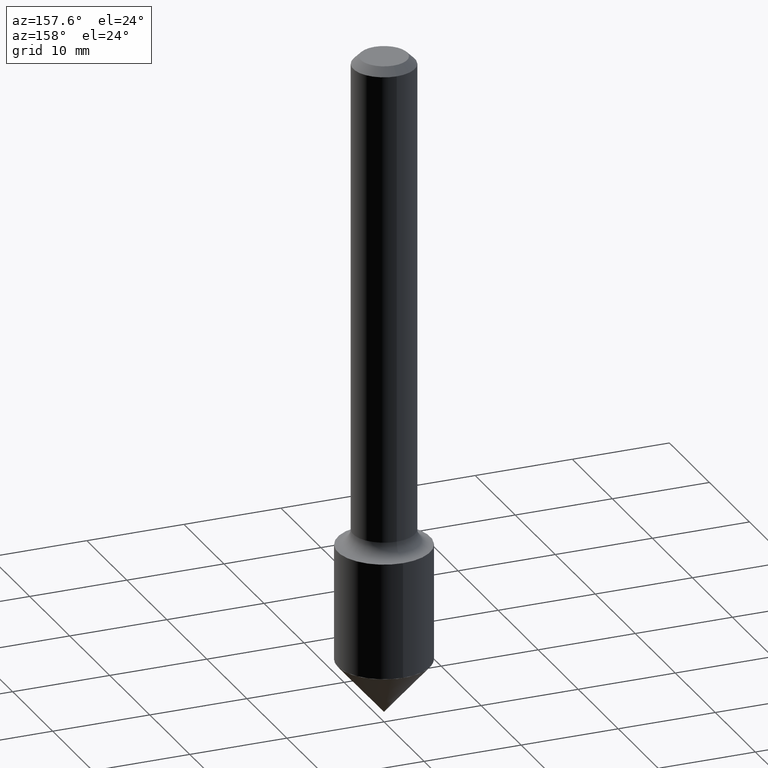
[diagram: clean part render]
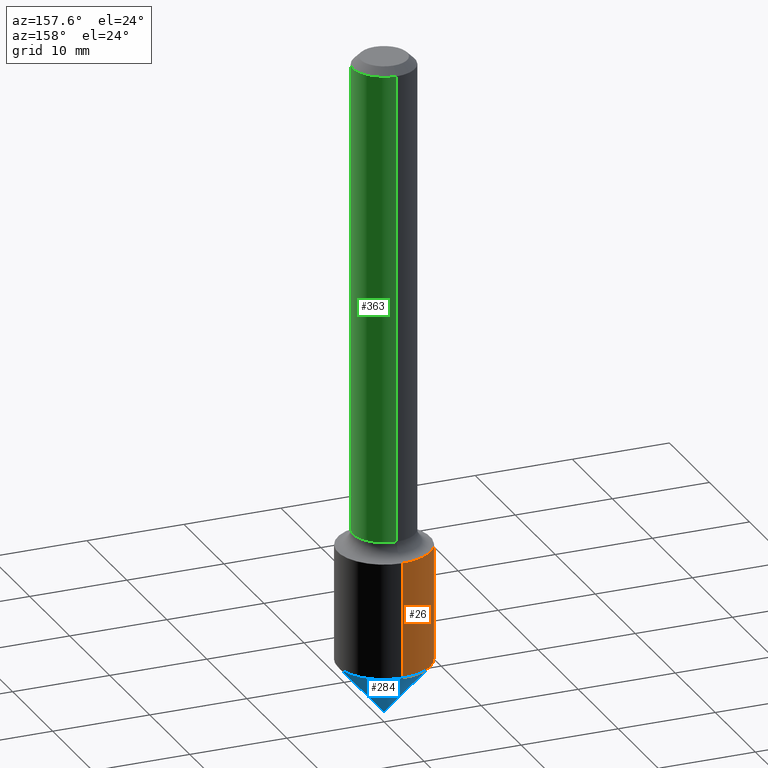
[diagram: same view with three faces highlighted in distinct colors, each labeled with its STEP entity id]
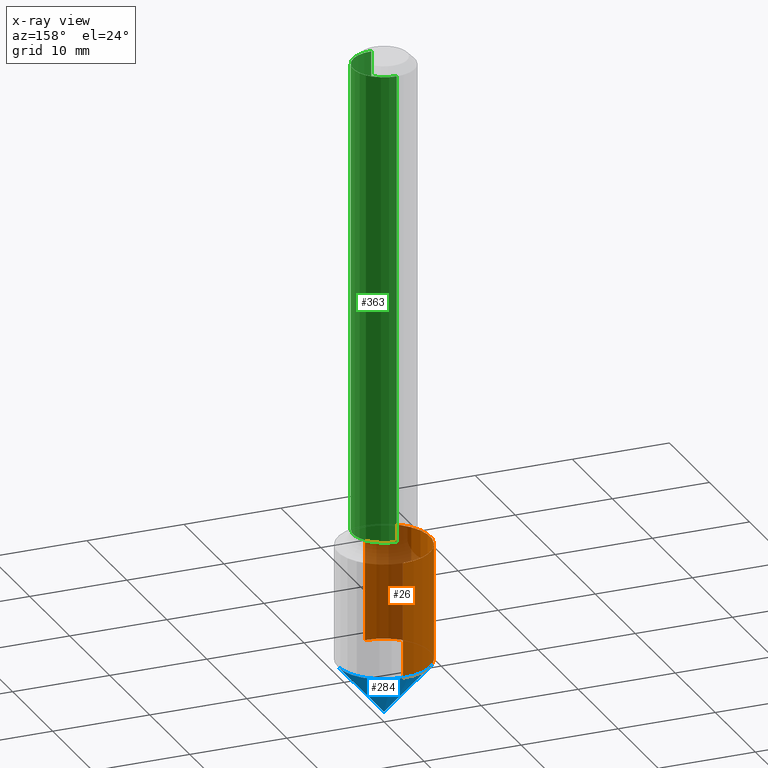
[diagram: x-ray of the same camera — body ghosted, the three highlighted faces saturated]
A machine part, auxiliary view with three faces highlighted in distinct colors.
The next image is the same camera in x-ray (body ghosted, the three faces saturated) — at least one of them is partly hidden behind the body in this view.
Their STEP definitions:

[orange] entity #26 — the highlighted cylindrical surface (partial cylindrical patch) has radius 4.7625 mm, axis along (-0, 0, 1).
#11 = EDGE_CURVE ( 'NONE', #174, #491, #100, .T. ) ;
#21 = EDGE_CURVE ( 'NONE', #383, #174, #237, .T. ) ;
#26 = ADVANCED_FACE ( 'NONE', ( #340 ), #155, .T. ) ;
#33 = ORIENTED_EDGE ( 'NONE', *, *, #356, .T. ) ;
#74 = CARTESIAN_POINT ( 'NONE',  ( 4.865737113931559965E-29, -7.040031821344046815E-15, -2.003000000000000114 ) ) ;
#100 = CIRCLE ( 'NONE', #339, 0.1874999999999995282 ) ;
#109 = VECTOR ( 'NONE', #423, 39.37007874015748143 ) ;
#135 = DIRECTION ( 'NONE',  ( -2.429224719885951237E-29, 3.514743794979554009E-15, 1.000000000000000000 ) ) ;
#151 = DIRECTION ( 'NONE',  ( -2.429224719885951237E-29, 3.514743794979554009E-15, 1.000000000000000000 ) ) ;
#155 = CYLINDRICAL_SURFACE ( 'NONE', #285, 0.1874999999999995837 ) ;
#163 = CARTESIAN_POINT ( 'NONE',  ( -1.309305502066111702E-15, -0.1875000000000082712, -2.473305923646059057 ) ) ;
#167 = CARTESIAN_POINT ( 'NONE',  ( -1.309305502066122352E-15, -0.1875000000000064670, -2.002999999999999226 ) ) ;
#169 = EDGE_LOOP ( 'NONE', ( #191, #438, #33, #252 ) ) ;
#174 = VERTEX_POINT ( 'NONE', #242 ) ;
#188 = CARTESIAN_POINT ( 'NONE',  ( -1.309305502066171853E-15, -0.1874999999999995837, 6.590144615586648236E-16 ) ) ;
#191 = ORIENTED_EDGE ( 'NONE', *, *, #21, .F. ) ;
#197 = CARTESIAN_POINT ( 'NONE',  ( 0.000000000000000000, 0.000000000000000000, 0.000000000000000000 ) ) ;
#205 = DIRECTION ( 'NONE',  ( -6.982962677686265133E-15, -1.000000000000000000, 2.913971193241887077E-15 ) ) ;
#233 = CARTESIAN_POINT ( 'NONE',  ( 1.332267629550184496E-15, 0.1874999999999995837, -6.590144615586648236E-16 ) ) ;
#237 = LINE ( 'NONE', #233, #109 ) ;
#242 = CARTESIAN_POINT ( 'NONE',  ( 1.332267629550232814E-15, 0.1874999999999924782, -2.003000000000000558 ) ) ;
#252 = ORIENTED_EDGE ( 'NONE', *, *, #11, .F. ) ;
#271 = DIRECTION ( 'NONE',  ( -6.982962677686266711E-15, -1.000000000000000000, 2.913971193241888261E-15 ) ) ;
#285 = AXIS2_PLACEMENT_3D ( 'NONE', #197, #344, #388 ) ;
#298 = DIRECTION ( 'NONE',  ( -2.429224719885951237E-29, 3.514743794979554009E-15, 1.000000000000000000 ) ) ;
#331 = LINE ( 'NONE', #188, #424 ) ;
#339 = AXIS2_PLACEMENT_3D ( 'NONE', #74, #298, #271 ) ;
#340 = FACE_OUTER_BOUND ( 'NONE', #169, .T. ) ;
#344 = DIRECTION ( 'NONE',  ( -2.429224719885951237E-29, 3.514743794979554009E-15, 1.000000000000000000 ) ) ;
#356 = EDGE_CURVE ( 'NONE', #463, #491, #331, .T. ) ;
#383 = VERTEX_POINT ( 'NONE', #453 ) ;
#388 = DIRECTION ( 'NONE',  ( -6.982962677686265133E-15, -1.000000000000000000, 3.514743794979553615E-15 ) ) ;
#397 = CIRCLE ( 'NONE', #409, 0.1874999999999995837 ) ;
#399 = CARTESIAN_POINT ( 'NONE',  ( 6.008215889561363554E-29, -8.693036648221162400E-15, -2.473305923646059945 ) ) ;
#409 = AXIS2_PLACEMENT_3D ( 'NONE', #399, #135, #205 ) ;
#423 = DIRECTION ( 'NONE',  ( -2.429224719885951237E-29, 3.514743794979554009E-15, 1.000000000000000000 ) ) ;
#424 = VECTOR ( 'NONE', #151, 39.37007874015748143 ) ;
#438 = ORIENTED_EDGE ( 'NONE', *, *, #457, .T. ) ;
#453 = CARTESIAN_POINT ( 'NONE',  ( 1.332267629550239124E-15, 0.1874999999999908684, -2.473305923646060389 ) ) ;
#457 = EDGE_CURVE ( 'NONE', #383, #463, #397, .T. ) ;
#463 = VERTEX_POINT ( 'NONE', #163 ) ;
#491 = VERTEX_POINT ( 'NONE', #167 ) ;

[blue] entity #284 — the highlighted conical surface has half-angle 41 deg.
#15 = CARTESIAN_POINT ( 'NONE',  ( 6.529663577209082975E-29, -9.461750806698696215E-15, -2.689999999999999947 ) ) ;
#16 = CONICAL_SURFACE ( 'NONE', #472, 0.1874999999999996947, 0.7155849933176727795 ) ;
#46 = DIRECTION ( 'NONE',  ( -2.445468806185136597E-29, 3.491481338843145583E-15, 1.000000000000000000 ) ) ;
#72 = CARTESIAN_POINT ( 'NONE',  ( 6.050837953235543055E-29, -8.638992958999271414E-15, -2.474305923646060279 ) ) ;
#104 = DIRECTION ( 'NONE',  ( 0.6560590289905054995, -1.946181298205834642E-15, 0.7547095802227735684 ) ) ;
#190 = EDGE_LOOP ( 'NONE', ( #222, #414, #216 ) ) ;
#210 = VERTEX_POINT ( 'NONE', #342 ) ;
#216 = ORIENTED_EDGE ( 'NONE', *, *, #445, .F. ) ;
#222 = ORIENTED_EDGE ( 'NONE', *, *, #250, .F. ) ;
#234 = VERTEX_POINT ( 'NONE', #461 ) ;
#245 = CIRCLE ( 'NONE', #286, 0.1874999999999996947 ) ;
#250 = EDGE_CURVE ( 'NONE', #254, #210, #366, .T. ) ;
#254 = VERTEX_POINT ( 'NONE', #15 ) ;
#267 = CARTESIAN_POINT ( 'NONE',  ( -0.1874999999999996947, -7.306725329449085143E-15, -2.474305923646060279 ) ) ;
#284 = ADVANCED_FACE ( 'NONE', ( #329 ), #16, .T. ) ;
#286 = AXIS2_PLACEMENT_3D ( 'NONE', #72, #46, #311 ) ;
#287 = CARTESIAN_POINT ( 'NONE',  ( 6.050837953235543055E-29, -8.638992958999271414E-15, -2.474305923646060279 ) ) ;
#311 = DIRECTION ( 'NONE',  ( 1.000000000000000000, -6.982962677686264344E-15, 0.000000000000000000 ) ) ;
#329 = FACE_OUTER_BOUND ( 'NONE', #190, .T. ) ;
#334 = DIRECTION ( 'NONE',  ( -2.445468806185136597E-29, 3.491481338843145583E-15, 1.000000000000000000 ) ) ;
#338 = LINE ( 'NONE', #267, #368 ) ;
#342 = CARTESIAN_POINT ( 'NONE',  ( 0.1874999999999996947, -9.925336333581432004E-15, -2.474305923646060279 ) ) ;
#365 = CARTESIAN_POINT ( 'NONE',  ( 0.1874999999999996947, -9.948298461065443267E-15, -2.474305923646060279 ) ) ;
#366 = LINE ( 'NONE', #365, #408 ) ;
#368 = VECTOR ( 'NONE', #417, 39.37007874015748143 ) ;
#408 = VECTOR ( 'NONE', #104, 39.37007874015748143 ) ;
#414 = ORIENTED_EDGE ( 'NONE', *, *, #440, .T. ) ;
#417 = DIRECTION ( 'NONE',  ( -0.6560590289905054995, 7.296634188384245269E-15, 0.7547095802227735684 ) ) ;
#440 = EDGE_CURVE ( 'NONE', #254, #234, #338, .T. ) ;
#445 = EDGE_CURVE ( 'NONE', #210, #234, #245, .T. ) ;
#446 = DIRECTION ( 'NONE',  ( 1.000000000000000000, -6.982962677686264344E-15, 0.000000000000000000 ) ) ;
#461 = CARTESIAN_POINT ( 'NONE',  ( -0.1874999999999996947, -7.329687456933097983E-15, -2.474305923646060279 ) ) ;
#472 = AXIS2_PLACEMENT_3D ( 'NONE', #287, #334, #446 ) ;

[green] entity #363 — the highlighted cylindrical surface (edge-blend (fillet) strip) has radius 3.175 mm, axis along (-0, 0, 1).
#9 = CARTESIAN_POINT ( 'NONE',  ( 1.110223024625203675E-15, 0.1249999999999934774, -1.940500000000001224 ) ) ;
#39 = EDGE_CURVE ( 'NONE', #395, #473, #243, .T. ) ;
#42 = DIRECTION ( 'NONE',  ( -6.982962677686265922E-15, -1.000000000000000000, 3.517254291842738968E-15 ) ) ;
#64 = CARTESIAN_POINT ( 'NONE',  ( -8.728703347107842263E-16, -0.1250000000000001388, 4.393429743724446949E-16 ) ) ;
#75 = ORIENTED_EDGE ( 'NONE', *, *, #132, .T. ) ;
#88 = LINE ( 'NONE', #275, #290 ) ;
#89 = CARTESIAN_POINT ( 'NONE',  ( -8.575622497214406564E-16, -0.1250000000000001110, -0.03119999999999975918 ) ) ;
#90 = EDGE_CURVE ( 'NONE', #487, #183, #316, .T. ) ;
#119 = CARTESIAN_POINT ( 'NONE',  ( 0.000000000000000000, 0.000000000000000000, 0.000000000000000000 ) ) ;
#132 = EDGE_CURVE ( 'NONE', #473, #183, #88, .T. ) ;
#148 = AXIS2_PLACEMENT_3D ( 'NONE', #119, #343, #264 ) ;
#183 = VERTEX_POINT ( 'NONE', #492 ) ;
#192 = DIRECTION ( 'NONE',  ( -6.982962677686266711E-15, -1.000000000000000000, 4.370956789862811683E-15 ) ) ;
#223 = ORIENTED_EDGE ( 'NONE', *, *, #90, .F. ) ;
#224 = DIRECTION ( 'NONE',  ( -2.429224719885951237E-29, 3.514743794979554009E-15, 1.000000000000000000 ) ) ;
#227 = CYLINDRICAL_SURFACE ( 'NONE', #148, 0.1250000000000001388 ) ;
#243 = CIRCLE ( 'NONE', #441, 0.1250000000000002776 ) ;
#247 = DIRECTION ( 'NONE',  ( -2.429224719885951237E-29, 3.514743794979554009E-15, 1.000000000000000000 ) ) ;
#264 = DIRECTION ( 'NONE',  ( -6.982962677686265922E-15, -1.000000000000000000, 3.514743794979553615E-15 ) ) ;
#269 = DIRECTION ( 'NONE',  ( -2.429224719885951237E-29, 3.514743794979554009E-15, 1.000000000000000000 ) ) ;
#275 = CARTESIAN_POINT ( 'NONE',  ( 8.881784197001260212E-16, 0.1250000000000001388, -4.393429743724446949E-16 ) ) ;
#290 = VECTOR ( 'NONE', #247, 39.37007874015748143 ) ;
#315 = ORIENTED_EDGE ( 'NONE', *, *, #39, .T. ) ;
#316 = CIRCLE ( 'NONE', #476, 0.1250000000000000000 ) ;
#335 = EDGE_LOOP ( 'NONE', ( #315, #75, #223, #385 ) ) ;
#336 = EDGE_CURVE ( 'NONE', #395, #487, #410, .T. ) ;
#343 = DIRECTION ( 'NONE',  ( -2.429224719885951237E-29, 3.514743794979554009E-15, 1.000000000000000000 ) ) ;
#347 = CARTESIAN_POINT ( 'NONE',  ( 4.713910568938690605E-29, -6.820360334157826489E-15, -1.940500000000000780 ) ) ;
#363 = ADVANCED_FACE ( 'NONE', ( #381 ), #227, .T. ) ;
#373 = CARTESIAN_POINT ( 'NONE',  ( -8.728703347107380779E-16, -0.1250000000000071054, -1.940500000000000336 ) ) ;
#381 = FACE_OUTER_BOUND ( 'NONE', #335, .T. ) ;
#385 = ORIENTED_EDGE ( 'NONE', *, *, #336, .F. ) ;
#395 = VERTEX_POINT ( 'NONE', #373 ) ;
#410 = LINE ( 'NONE', #64, #450 ) ;
#441 = AXIS2_PLACEMENT_3D ( 'NONE', #347, #486, #192 ) ;
#450 = VECTOR ( 'NONE', #224, 39.37007874015748143 ) ;
#467 = CARTESIAN_POINT ( 'NONE',  ( 7.579181126044216047E-31, -1.096600064033627961E-16, -0.03120000000000019980 ) ) ;
#473 = VERTEX_POINT ( 'NONE', #9 ) ;
#476 = AXIS2_PLACEMENT_3D ( 'NONE', #467, #269, #42 ) ;
#486 = DIRECTION ( 'NONE',  ( -2.429224719885951237E-29, 3.514743794979554009E-15, 1.000000000000000000 ) ) ;
#487 = VERTEX_POINT ( 'NONE', #89 ) ;
#492 = CARTESIAN_POINT ( 'NONE',  ( 8.728703347107839305E-16, 0.1249999999999999029, -0.03120000000000063695 ) ) ;